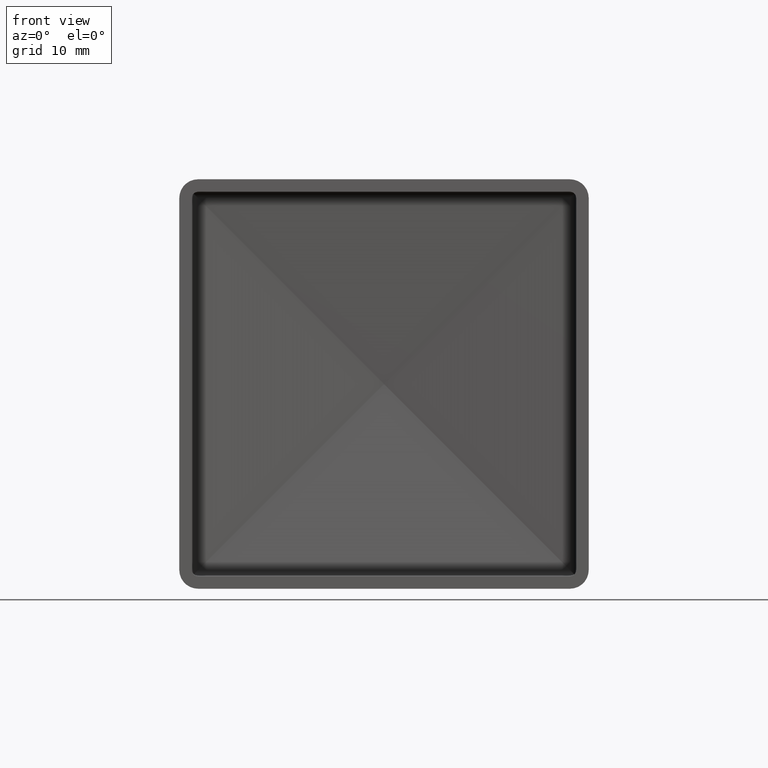
[diagram: clean part render]
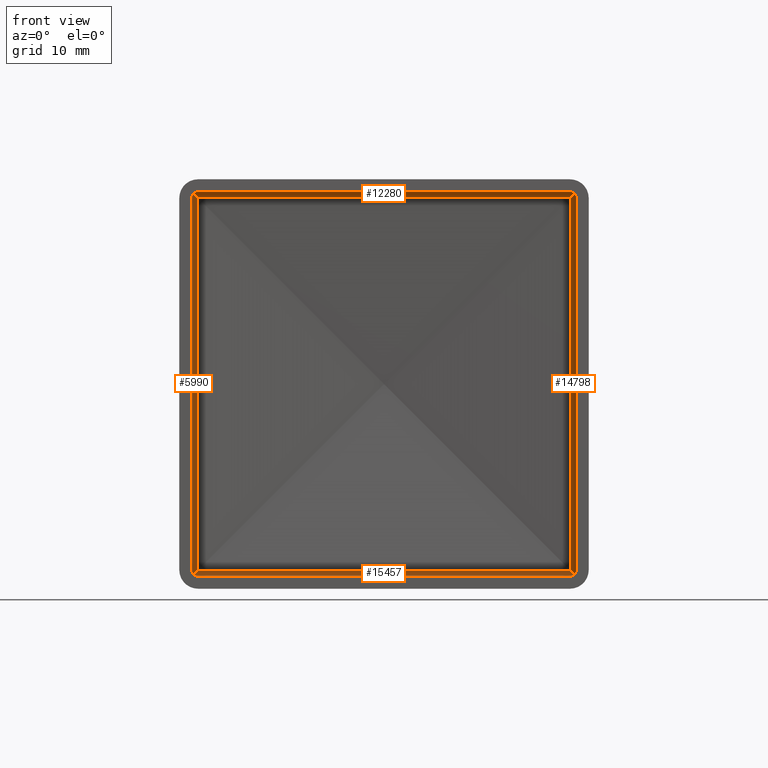
[diagram: same view with one multi-face feature highlighted, each face labeled with its STEP entity id]
A machine part, front view. The highlighted faces form ONE feature: a constant-radius fillet chain: 4 tangent blend faces with common blend radius 1 mm. The faces share edges in the B-rep.
Their STEP definitions:
[1] entity #5990 (Cylinder):
#889 = ORIENTED_EDGE ( 'NONE', *, *, #10442, .T. ) ;
#1141 = EDGE_CURVE ( 'NONE', #1759, #1361, #8740, .T. ) ;
#1280 = CARTESIAN_POINT ( 'NONE',  ( -30.07168099838301200, 7.476492595976340600, -30.07168099838300500 ) ) ;
#1361 = VERTEX_POINT ( 'NONE', #11283 ) ;
#1401 = CARTESIAN_POINT ( 'NONE',  ( -29.83373846778274100, 7.496487766615021400, 29.83373846778274800 ) ) ;
#1417 = CARTESIAN_POINT ( 'NONE',  ( -29.83373846778274800, 7.496487766615020500, -29.83373846778274800 ) ) ;
#1733 = AXIS2_PLACEMENT_3D ( 'NONE', #7866, #15743, #16085 ) ;
#1759 = VERTEX_POINT ( 'NONE', #10248 ) ;
#2811 = DIRECTION ( 'NONE',  ( 0.0000000000000000000, 0.0000000000000000000, 1.000000000000000000 ) ) ;
#3770 =( BOUNDED_CURVE ( )  B_SPLINE_CURVE ( 3, ( #1401, #16326, #4336, #14831 ),
 .UNSPECIFIED., .F., .T. ) 
 B_SPLINE_CURVE_WITH_KNOTS ( ( 4, 4 ),
 ( 4.796225622453100400, 5.497787143782207200 ),
 .UNSPECIFIED. ) 
 CURVE ( )  GEOMETRIC_REPRESENTATION_ITEM ( )  RATIONAL_B_SPLINE_CURVE ( ( 1.000000000000000000, 0.9594031369598481400, 0.9594031369598481400, 1.000000000000000000 ) ) 
 REPRESENTATION_ITEM ( '' )  );
#3840 = ORIENTED_EDGE ( 'NONE', *, *, #5920, .F. ) ;
#4047 = CARTESIAN_POINT ( 'NONE',  ( -30.75000000000000400, 6.768761102064679800, -30.01876110206467600 ) ) ;
#4124 = VERTEX_POINT ( 'NONE', #1417 ) ;
#4336 = CARTESIAN_POINT ( 'NONE',  ( -30.28826298545021000, 7.375950576922878800, 30.28826298545021700 ) ) ;
#5039 = CARTESIAN_POINT ( 'NONE',  ( -30.28826298545021700, 7.375950576922872600, -30.28826298545021000 ) ) ;
#5751 = CARTESIAN_POINT ( 'NONE',  ( -30.75000000000004300, 6.500000000000000000, 29.75000000000000000 ) ) ;
#5920 = EDGE_CURVE ( 'NONE', #9572, #15873, #10614, .T. ) ;
#5990 = ADVANCED_FACE ( 'NONE', ( #8012 ), #15777, .F. ) ;
#6707 = VECTOR ( 'NONE', #2811, 1000.000000000000000 ) ;
#6782 = CARTESIAN_POINT ( 'NONE',  ( -29.83373846778274100, 7.496487766615021400, 29.83373846778274800 ) ) ;
#6903 = LINE ( 'NONE', #8129, #6707 ) ;
#7205 = CARTESIAN_POINT ( 'NONE',  ( -30.74999999999997200, 6.500000000000000900, -29.75000000000000400 ) ) ;
#7219 = EDGE_CURVE ( 'NONE', #13163, #1361, #3770, .T. ) ;
#7246 =( BOUNDED_CURVE ( )  B_SPLINE_CURVE ( 3, ( #9064, #1280, #5039, #7926 ),
 .UNSPECIFIED., .F., .F. ) 
 B_SPLINE_CURVE_WITH_KNOTS ( ( 4, 4 ),
 ( 1.654632968863317500, 2.356194490192423900 ),
 .UNSPECIFIED. ) 
 CURVE ( )  GEOMETRIC_REPRESENTATION_ITEM ( )  RATIONAL_B_SPLINE_CURVE ( ( 1.000000000000000000, 0.9594031369598483600, 0.9594031369598483600, 1.000000000000000000 ) ) 
 REPRESENTATION_ITEM ( '' )  );
#7336 = ORIENTED_EDGE ( 'NONE', *, *, #7531, .F. ) ;
#7531 = EDGE_CURVE ( 'NONE', #15873, #1759, #13523, .T. ) ;
#7715 = EDGE_LOOP ( 'NONE', ( #7336, #3840, #16096, #889, #12953, #13606 ) ) ;
#7866 = CARTESIAN_POINT ( 'NONE',  ( -29.74999999999997200, 6.500000000000000900, -32.75000000000000000 ) ) ;
#7926 = CARTESIAN_POINT ( 'NONE',  ( -30.45710678118657500, 7.207106781186492800, -30.45710678118656700 ) ) ;
#8012 = FACE_OUTER_BOUND ( 'NONE', #7715, .T. ) ;
#8031 = CARTESIAN_POINT ( 'NONE',  ( -30.45710678118657500, 7.207106781186492800, -30.45710678118656700 ) ) ;
#8129 = CARTESIAN_POINT ( 'NONE',  ( -29.83373846778273400, 7.496487766615020500, -32.75000000000000000 ) ) ;
#8230 = DIRECTION ( 'NONE',  ( -0.0000000000000000000, -0.0000000000000000000, 1.000000000000000000 ) ) ;
#8740 =( BOUNDED_CURVE ( )  B_SPLINE_CURVE ( 3, ( #5751, #10970, #12300, #13485 ),
 .UNSPECIFIED., .F., .F. ) 
 B_SPLINE_CURVE_WITH_KNOTS ( ( 4, 4 ),
 ( 4.712388980384689700, 5.497787143782120200 ),
 .UNSPECIFIED. ) 
 CURVE ( )  GEOMETRIC_REPRESENTATION_ITEM ( )  RATIONAL_B_SPLINE_CURVE ( ( 1.000000000000000000, 0.9492530216741933400, 0.9492530216741933400, 1.000000000000000000 ) ) 
 REPRESENTATION_ITEM ( '' )  );
#9064 = CARTESIAN_POINT ( 'NONE',  ( -29.83373846778274800, 7.496487766615020500, -29.83373846778274800 ) ) ;
#9308 = CARTESIAN_POINT ( 'NONE',  ( -30.74999999999997200, 6.500000000000000900, -32.75000000000000000 ) ) ;
#9572 = VERTEX_POINT ( 'NONE', #10133 ) ;
#10049 = VECTOR ( 'NONE', #8230, 1000.000000000000000 ) ;
#10133 = CARTESIAN_POINT ( 'NONE',  ( -30.45710678118657500, 7.207106781186492800, -30.45710678118656700 ) ) ;
#10248 = CARTESIAN_POINT ( 'NONE',  ( -30.75000000000004300, 6.500000000000000000, 29.75000000000000000 ) ) ;
#10442 = EDGE_CURVE ( 'NONE', #4124, #13163, #6903, .T. ) ;
#10591 = CARTESIAN_POINT ( 'NONE',  ( -30.64714957897567200, 7.017063983397418000, -30.26706398339741700 ) ) ;
#10614 =( BOUNDED_CURVE ( )  B_SPLINE_CURVE ( 3, ( #8031, #10591, #4047, #13206 ),
 .UNSPECIFIED., .F., .F. ) 
 B_SPLINE_CURVE_WITH_KNOTS ( ( 4, 4 ),
 ( 3.926990816987269800, 4.712388980384689700 ),
 .UNSPECIFIED. ) 
 CURVE ( )  GEOMETRIC_REPRESENTATION_ITEM ( )  RATIONAL_B_SPLINE_CURVE ( ( 1.000000000000000000, 0.9492530216741947900, 0.9492530216741947900, 1.000000000000000000 ) ) 
 REPRESENTATION_ITEM ( '' )  );
#10970 = CARTESIAN_POINT ( 'NONE',  ( -30.75000000000001100, 6.768761102064685200, 30.01876110206468300 ) ) ;
#11283 = CARTESIAN_POINT ( 'NONE',  ( -30.45710678118656700, 7.207106781186499900, 30.45710678118657500 ) ) ;
#12300 = CARTESIAN_POINT ( 'NONE',  ( -30.64714957897567200, 7.017063983397425100, 30.26706398339742400 ) ) ;
#12953 = ORIENTED_EDGE ( 'NONE', *, *, #7219, .T. ) ;
#13163 = VERTEX_POINT ( 'NONE', #6782 ) ;
#13206 = CARTESIAN_POINT ( 'NONE',  ( -30.74999999999997200, 6.500000000000000900, -29.75000000000000400 ) ) ;
#13485 = CARTESIAN_POINT ( 'NONE',  ( -30.45710678118656700, 7.207106781186499900, 30.45710678118657500 ) ) ;
#13523 = LINE ( 'NONE', #9308, #10049 ) ;
#13606 = ORIENTED_EDGE ( 'NONE', *, *, #1141, .F. ) ;
#13721 = EDGE_CURVE ( 'NONE', #4124, #9572, #7246, .T. ) ;
#14831 = CARTESIAN_POINT ( 'NONE',  ( -30.45710678118656700, 7.207106781186499900, 30.45710678118657500 ) ) ;
#15743 = DIRECTION ( 'NONE',  ( -0.0000000000000000000, -0.0000000000000000000, 1.000000000000000000 ) ) ;
#15777 = CYLINDRICAL_SURFACE ( 'NONE', #1733, 1.000000000000000900 ) ;
#15873 = VERTEX_POINT ( 'NONE', #7205 ) ;
#16085 = DIRECTION ( 'NONE',  ( 1.000000000000000000, 0.0000000000000000000, 0.0000000000000000000 ) ) ;
#16096 = ORIENTED_EDGE ( 'NONE', *, *, #13721, .F. ) ;
#16326 = CARTESIAN_POINT ( 'NONE',  ( -30.07168099838300200, 7.476492595976344200, 30.07168099838300900 ) ) ;
[2] entity #15457 (Cylinder):
#300 = EDGE_CURVE ( 'NONE', #5995, #9572, #15343, .T. ) ;
#432 = AXIS2_PLACEMENT_3D ( 'NONE', #13348, #1544, #8174 ) ;
#665 = CARTESIAN_POINT ( 'NONE',  ( 30.26706398339739900, 7.017063983397442900, -30.64714957897564700 ) ) ;
#1217 = CARTESIAN_POINT ( 'NONE',  ( -29.75000000000003900, 6.500000000000000000, -30.75000000000000000 ) ) ;
#1280 = CARTESIAN_POINT ( 'NONE',  ( -30.07168099838301200, 7.476492595976340600, -30.07168099838300500 ) ) ;
#1417 = CARTESIAN_POINT ( 'NONE',  ( -29.83373846778274800, 7.496487766615020500, -29.83373846778274800 ) ) ;
#1544 = DIRECTION ( 'NONE',  ( -1.000000000000000000, -0.0000000000000000000, 2.220446049250313100E-016 ) ) ;
#2409 = EDGE_LOOP ( 'NONE', ( #10644, #3752, #6474, #12257, #8885, #16189 ) ) ;
#3146 = CARTESIAN_POINT ( 'NONE',  ( 30.45710678118652100, 7.207106781186542600, -30.45710678118652800 ) ) ;
#3342 = LINE ( 'NONE', #4608, #6424 ) ;
#3752 = ORIENTED_EDGE ( 'NONE', *, *, #11952, .T. ) ;
#4124 = VERTEX_POINT ( 'NONE', #1417 ) ;
#4346 = FACE_OUTER_BOUND ( 'NONE', #2409, .T. ) ;
#4608 = CARTESIAN_POINT ( 'NONE',  ( 32.74999999999997200, 6.500000000000000900, -30.74999999999997900 ) ) ;
#5039 = CARTESIAN_POINT ( 'NONE',  ( -30.28826298545021700, 7.375950576922872600, -30.28826298545021000 ) ) ;
#5269 = DIRECTION ( 'NONE',  ( -1.000000000000000000, -1.852836966978386300E-017, 1.557005854603688200E-018 ) ) ;
#5908 = CARTESIAN_POINT ( 'NONE',  ( 29.83373846778275900, 7.496487766615021400, -29.83373846778274100 ) ) ;
#5995 = VERTEX_POINT ( 'NONE', #15914 ) ;
#6424 = VECTOR ( 'NONE', #7250, 1000.000000000000000 ) ;
#6474 = ORIENTED_EDGE ( 'NONE', *, *, #13721, .T. ) ;
#6494 = CARTESIAN_POINT ( 'NONE',  ( 32.74999999999997900, 7.496487766615019600, -29.83373846778275900 ) ) ;
#6509 = CARTESIAN_POINT ( 'NONE',  ( -30.45710678118657500, 7.207106781186492800, -30.45710678118656700 ) ) ;
#6720 = VERTEX_POINT ( 'NONE', #14211 ) ;
#7246 =( BOUNDED_CURVE ( )  B_SPLINE_CURVE ( 3, ( #9064, #1280, #5039, #7926 ),
 .UNSPECIFIED., .F., .F. ) 
 B_SPLINE_CURVE_WITH_KNOTS ( ( 4, 4 ),
 ( 1.654632968863317500, 2.356194490192423900 ),
 .UNSPECIFIED. ) 
 CURVE ( )  GEOMETRIC_REPRESENTATION_ITEM ( )  RATIONAL_B_SPLINE_CURVE ( ( 1.000000000000000000, 0.9594031369598483600, 0.9594031369598483600, 1.000000000000000000 ) ) 
 REPRESENTATION_ITEM ( '' )  );
#7250 = DIRECTION ( 'NONE',  ( -1.000000000000000000, -0.0000000000000000000, 2.220446049250313100E-016 ) ) ;
#7357 = CARTESIAN_POINT ( 'NONE',  ( 30.01876110206465500, 6.768761102064694900, -30.74999999999999300 ) ) ;
#7926 = CARTESIAN_POINT ( 'NONE',  ( -30.45710678118657500, 7.207106781186492800, -30.45710678118656700 ) ) ;
#8174 = DIRECTION ( 'NONE',  ( 0.0000000000000000000, 0.0000000000000000000, 1.000000000000000000 ) ) ;
#8885 = ORIENTED_EDGE ( 'NONE', *, *, #14446, .F. ) ;
#9064 = CARTESIAN_POINT ( 'NONE',  ( -29.83373846778274800, 7.496487766615020500, -29.83373846778274800 ) ) ;
#9122 =( BOUNDED_CURVE ( )  B_SPLINE_CURVE ( 3, ( #3146, #665, #7357, #11291 ),
 .UNSPECIFIED., .F., .F. ) 
 B_SPLINE_CURVE_WITH_KNOTS ( ( 4, 4 ),
 ( 3.926990816987229800, 4.712388980384689700 ),
 .UNSPECIFIED. ) 
 CURVE ( )  GEOMETRIC_REPRESENTATION_ITEM ( )  RATIONAL_B_SPLINE_CURVE ( ( 1.000000000000000000, 0.9492530216741896800, 0.9492530216741896800, 1.000000000000000000 ) ) 
 REPRESENTATION_ITEM ( '' )  );
#9185 = CARTESIAN_POINT ( 'NONE',  ( 30.28826298545017100, 7.375950576922893900, -30.28826298545017800 ) ) ;
#9572 = VERTEX_POINT ( 'NONE', #10133 ) ;
#10133 = CARTESIAN_POINT ( 'NONE',  ( -30.45710678118657500, 7.207106781186492800, -30.45710678118656700 ) ) ;
#10495 = CARTESIAN_POINT ( 'NONE',  ( 30.07168099838298800, 7.476492595976345100, -30.07168099838299800 ) ) ;
#10513 = CARTESIAN_POINT ( 'NONE',  ( -30.01876110206471500, 6.768761102064673600, -30.74999999999998600 ) ) ;
#10554 = CARTESIAN_POINT ( 'NONE',  ( 30.45710678118652100, 7.207106781186542600, -30.45710678118652800 ) ) ;
#10644 = ORIENTED_EDGE ( 'NONE', *, *, #14576, .F. ) ;
#11184 = LINE ( 'NONE', #6494, #12623 ) ;
#11263 = VERTEX_POINT ( 'NONE', #5908 ) ;
#11291 = CARTESIAN_POINT ( 'NONE',  ( 29.74999999999995700, 6.500000000000000900, -30.74999999999997900 ) ) ;
#11369 = VERTEX_POINT ( 'NONE', #16735 ) ;
#11729 = CYLINDRICAL_SURFACE ( 'NONE', #432, 1.000000000000000900 ) ;
#11952 = EDGE_CURVE ( 'NONE', #11263, #4124, #11184, .T. ) ;
#12257 = ORIENTED_EDGE ( 'NONE', *, *, #300, .F. ) ;
#12623 = VECTOR ( 'NONE', #5269, 1000.000000000000000 ) ;
#13348 = CARTESIAN_POINT ( 'NONE',  ( 32.74999999999997200, 6.500000000000000900, -29.74999999999997900 ) ) ;
#13721 = EDGE_CURVE ( 'NONE', #4124, #9572, #7246, .T. ) ;
#14211 = CARTESIAN_POINT ( 'NONE',  ( 30.45710678118652100, 7.207106781186542600, -30.45710678118652800 ) ) ;
#14342 = CARTESIAN_POINT ( 'NONE',  ( -30.26706398339744600, 7.017063983397402900, -30.64714957897565700 ) ) ;
#14446 = EDGE_CURVE ( 'NONE', #11369, #5995, #3342, .T. ) ;
#14576 = EDGE_CURVE ( 'NONE', #11263, #6720, #15948, .T. ) ;
#15343 =( BOUNDED_CURVE ( )  B_SPLINE_CURVE ( 3, ( #1217, #10513, #14342, #6509 ),
 .UNSPECIFIED., .F., .F. ) 
 B_SPLINE_CURVE_WITH_KNOTS ( ( 4, 4 ),
 ( 4.712388980384688800, 5.497787143782088200 ),
 .UNSPECIFIED. ) 
 CURVE ( )  GEOMETRIC_REPRESENTATION_ITEM ( )  RATIONAL_B_SPLINE_CURVE ( ( 1.000000000000000000, 0.9492530216741973400, 0.9492530216741973400, 1.000000000000000000 ) ) 
 REPRESENTATION_ITEM ( '' )  );
#15457 = ADVANCED_FACE ( 'NONE', ( #4346 ), #11729, .F. ) ;
#15539 = CARTESIAN_POINT ( 'NONE',  ( 29.83373846778275900, 7.496487766615021400, -29.83373846778274100 ) ) ;
#15580 = EDGE_CURVE ( 'NONE', #6720, #11369, #9122, .T. ) ;
#15914 = CARTESIAN_POINT ( 'NONE',  ( -29.75000000000003900, 6.500000000000000000, -30.75000000000000000 ) ) ;
#15948 =( BOUNDED_CURVE ( )  B_SPLINE_CURVE ( 3, ( #15539, #10495, #9185, #10554 ),
 .UNSPECIFIED., .F., .F. ) 
 B_SPLINE_CURVE_WITH_KNOTS ( ( 4, 4 ),
 ( 1.654632968863313900, 2.356194490192351500 ),
 .UNSPECIFIED. ) 
 CURVE ( )  GEOMETRIC_REPRESENTATION_ITEM ( )  RATIONAL_B_SPLINE_CURVE ( ( 1.000000000000000000, 0.9594031369598561300, 0.9594031369598561300, 1.000000000000000000 ) ) 
 REPRESENTATION_ITEM ( '' )  );
#16189 = ORIENTED_EDGE ( 'NONE', *, *, #15580, .F. ) ;
#16735 = CARTESIAN_POINT ( 'NONE',  ( 29.74999999999995700, 6.500000000000000900, -30.74999999999997900 ) ) ;
[3] entity #14798 (Cylinder):
#592 =( BOUNDED_CURVE ( )  B_SPLINE_CURVE ( 3, ( #13598, #4673, #980, #2192 ),
 .UNSPECIFIED., .F., .F. ) 
 B_SPLINE_CURVE_WITH_KNOTS ( ( 4, 4 ),
 ( 4.796225622453093300, 5.497787143782164600 ),
 .UNSPECIFIED. ) 
 CURVE ( )  GEOMETRIC_REPRESENTATION_ITEM ( )  RATIONAL_B_SPLINE_CURVE ( ( 1.000000000000000000, 0.9594031369598523500, 0.9594031369598523500, 1.000000000000000000 ) ) 
 REPRESENTATION_ITEM ( '' )  );
#700 = ORIENTED_EDGE ( 'NONE', *, *, #14990, .F. ) ;
#745 = CARTESIAN_POINT ( 'NONE',  ( 30.74999999999996800, 6.768761102064685200, -30.01876110206468700 ) ) ;
#767 = LINE ( 'NONE', #1844, #11676 ) ;
#980 = CARTESIAN_POINT ( 'NONE',  ( 30.28826298545018100, 7.375950576922891200, 30.28826298545017800 ) ) ;
#1644 = CARTESIAN_POINT ( 'NONE',  ( 29.83373846778272700, 7.496487766615021400, 29.83373846778273400 ) ) ;
#1844 = CARTESIAN_POINT ( 'NONE',  ( 30.74999999999995700, 6.500000000000000000, -32.75000000000000000 ) ) ;
#2132 = ORIENTED_EDGE ( 'NONE', *, *, #14576, .T. ) ;
#2192 = CARTESIAN_POINT ( 'NONE',  ( 30.45710678118653500, 7.207106781186529300, 30.45710678118652800 ) ) ;
#2198 = CARTESIAN_POINT ( 'NONE',  ( 30.45710678118652100, 7.207106781186542600, -30.45710678118652800 ) ) ;
#2780 = CARTESIAN_POINT ( 'NONE',  ( 30.74999999999997200, 6.500000000000000900, 29.75000000000000000 ) ) ;
#4233 = VERTEX_POINT ( 'NONE', #2780 ) ;
#4241 = DIRECTION ( 'NONE',  ( 2.118746230200680300E-016, 0.0000000000000000000, 1.000000000000000000 ) ) ;
#4673 = CARTESIAN_POINT ( 'NONE',  ( 30.07168099838298800, 7.476492595976348600, 30.07168099838298000 ) ) ;
#4799 = ORIENTED_EDGE ( 'NONE', *, *, #6787, .T. ) ;
#4979 = VECTOR ( 'NONE', #14258, 1000.000000000000000 ) ;
#4984 = CARTESIAN_POINT ( 'NONE',  ( 30.45710678118653500, 7.207106781186529300, 30.45710678118652800 ) ) ;
#5839 = CARTESIAN_POINT ( 'NONE',  ( 29.74999999999997200, 6.500000000000000900, -32.75000000000000000 ) ) ;
#5908 = CARTESIAN_POINT ( 'NONE',  ( 29.83373846778275900, 7.496487766615021400, -29.83373846778274100 ) ) ;
#6251 = EDGE_CURVE ( 'NONE', #6547, #6720, #13428, .T. ) ;
#6547 = VERTEX_POINT ( 'NONE', #15150 ) ;
#6720 = VERTEX_POINT ( 'NONE', #14211 ) ;
#6787 = EDGE_CURVE ( 'NONE', #6547, #4233, #767, .T. ) ;
#7010 = EDGE_CURVE ( 'NONE', #15887, #4233, #11130, .T. ) ;
#7512 = EDGE_LOOP ( 'NONE', ( #4799, #10076, #12416, #700, #2132, #14490 ) ) ;
#7583 = CARTESIAN_POINT ( 'NONE',  ( 30.74999999999997200, 6.500000000000000900, 29.75000000000000000 ) ) ;
#7863 = LINE ( 'NONE', #12901, #4979 ) ;
#7879 = FACE_OUTER_BOUND ( 'NONE', #7512, .T. ) ;
#8477 = EDGE_CURVE ( 'NONE', #10055, #15887, #592, .T. ) ;
#8700 = CARTESIAN_POINT ( 'NONE',  ( 30.64714957897562500, 7.017063983397425100, -30.26706398339742800 ) ) ;
#9185 = CARTESIAN_POINT ( 'NONE',  ( 30.28826298545017100, 7.375950576922893900, -30.28826298545017800 ) ) ;
#10055 = VERTEX_POINT ( 'NONE', #1644 ) ;
#10076 = ORIENTED_EDGE ( 'NONE', *, *, #7010, .F. ) ;
#10087 = DIRECTION ( 'NONE',  ( 1.000000000000000000, 0.0000000000000000000, 0.0000000000000000000 ) ) ;
#10143 = DIRECTION ( 'NONE',  ( -0.0000000000000000000, -0.0000000000000000000, 1.000000000000000000 ) ) ;
#10495 = CARTESIAN_POINT ( 'NONE',  ( 30.07168099838298800, 7.476492595976345100, -30.07168099838299800 ) ) ;
#10554 = CARTESIAN_POINT ( 'NONE',  ( 30.45710678118652100, 7.207106781186542600, -30.45710678118652800 ) ) ;
#11130 =( BOUNDED_CURVE ( )  B_SPLINE_CURVE ( 3, ( #4984, #14140, #16786, #7583 ),
 .UNSPECIFIED., .F., .F. ) 
 B_SPLINE_CURVE_WITH_KNOTS ( ( 4, 4 ),
 ( 3.926990816987266300, 4.712388980384689700 ),
 .UNSPECIFIED. ) 
 CURVE ( )  GEOMETRIC_REPRESENTATION_ITEM ( )  RATIONAL_B_SPLINE_CURVE ( ( 1.000000000000000000, 0.9492530216741942300, 0.9492530216741942300, 1.000000000000000000 ) ) 
 REPRESENTATION_ITEM ( '' )  );
#11263 = VERTEX_POINT ( 'NONE', #5908 ) ;
#11676 = VECTOR ( 'NONE', #4241, 1000.000000000000000 ) ;
#12209 = AXIS2_PLACEMENT_3D ( 'NONE', #5839, #10143, #10087 ) ;
#12416 = ORIENTED_EDGE ( 'NONE', *, *, #8477, .F. ) ;
#12901 = CARTESIAN_POINT ( 'NONE',  ( 29.83373846778274400, 7.496487766615022300, -32.75000000000000000 ) ) ;
#13428 =( BOUNDED_CURVE ( )  B_SPLINE_CURVE ( 3, ( #16541, #745, #8700, #2198 ),
 .UNSPECIFIED., .F., .F. ) 
 B_SPLINE_CURVE_WITH_KNOTS ( ( 4, 4 ),
 ( 1.570796326794896600, 2.356194490192327500 ),
 .UNSPECIFIED. ) 
 CURVE ( )  GEOMETRIC_REPRESENTATION_ITEM ( )  RATIONAL_B_SPLINE_CURVE ( ( 1.000000000000000000, 0.9492530216741933400, 0.9492530216741933400, 1.000000000000000000 ) ) 
 REPRESENTATION_ITEM ( '' )  );
#13598 = CARTESIAN_POINT ( 'NONE',  ( 29.83373846778272700, 7.496487766615021400, 29.83373846778273400 ) ) ;
#13879 = CARTESIAN_POINT ( 'NONE',  ( 30.45710678118653500, 7.207106781186529300, 30.45710678118652800 ) ) ;
#13986 = CYLINDRICAL_SURFACE ( 'NONE', #12209, 1.000000000000000900 ) ;
#14140 = CARTESIAN_POINT ( 'NONE',  ( 30.64714957897563300, 7.017063983397420700, 30.26706398339741700 ) ) ;
#14211 = CARTESIAN_POINT ( 'NONE',  ( 30.45710678118652100, 7.207106781186542600, -30.45710678118652800 ) ) ;
#14258 = DIRECTION ( 'NONE',  ( -0.0000000000000000000, -0.0000000000000000000, 1.000000000000000000 ) ) ;
#14490 = ORIENTED_EDGE ( 'NONE', *, *, #6251, .F. ) ;
#14576 = EDGE_CURVE ( 'NONE', #11263, #6720, #15948, .T. ) ;
#14798 = ADVANCED_FACE ( 'NONE', ( #7879 ), #13986, .F. ) ;
#14990 = EDGE_CURVE ( 'NONE', #11263, #10055, #7863, .T. ) ;
#15150 = CARTESIAN_POINT ( 'NONE',  ( 30.74999999999995700, 6.500000000000000000, -29.75000000000000400 ) ) ;
#15539 = CARTESIAN_POINT ( 'NONE',  ( 29.83373846778275900, 7.496487766615021400, -29.83373846778274100 ) ) ;
#15887 = VERTEX_POINT ( 'NONE', #13879 ) ;
#15948 =( BOUNDED_CURVE ( )  B_SPLINE_CURVE ( 3, ( #15539, #10495, #9185, #10554 ),
 .UNSPECIFIED., .F., .F. ) 
 B_SPLINE_CURVE_WITH_KNOTS ( ( 4, 4 ),
 ( 1.654632968863313900, 2.356194490192351500 ),
 .UNSPECIFIED. ) 
 CURVE ( )  GEOMETRIC_REPRESENTATION_ITEM ( )  RATIONAL_B_SPLINE_CURVE ( ( 1.000000000000000000, 0.9594031369598561300, 0.9594031369598561300, 1.000000000000000000 ) ) 
 REPRESENTATION_ITEM ( '' )  );
#16541 = CARTESIAN_POINT ( 'NONE',  ( 30.74999999999995700, 6.500000000000000000, -29.75000000000000400 ) ) ;
#16786 = CARTESIAN_POINT ( 'NONE',  ( 30.74999999999996800, 6.768761102064682500, 30.01876110206467600 ) ) ;
[4] entity #12280 (Cylinder):
#462 = CARTESIAN_POINT ( 'NONE',  ( 30.45710678118653500, 7.207106781186529300, 30.45710678118652800 ) ) ;
#544 = EDGE_CURVE ( 'NONE', #1361, #7164, #11566, .T. ) ;
#581 = CARTESIAN_POINT ( 'NONE',  ( 30.26706398339740300, 7.017063983397433100, 30.64714957897563600 ) ) ;
#592 =( BOUNDED_CURVE ( )  B_SPLINE_CURVE ( 3, ( #13598, #4673, #980, #2192 ),
 .UNSPECIFIED., .F., .F. ) 
 B_SPLINE_CURVE_WITH_KNOTS ( ( 4, 4 ),
 ( 4.796225622453093300, 5.497787143782164600 ),
 .UNSPECIFIED. ) 
 CURVE ( )  GEOMETRIC_REPRESENTATION_ITEM ( )  RATIONAL_B_SPLINE_CURVE ( ( 1.000000000000000000, 0.9594031369598523500, 0.9594031369598523500, 1.000000000000000000 ) ) 
 REPRESENTATION_ITEM ( '' )  );
#922 = ORIENTED_EDGE ( 'NONE', *, *, #8477, .T. ) ;
#980 = CARTESIAN_POINT ( 'NONE',  ( 30.28826298545018100, 7.375950576922891200, 30.28826298545017800 ) ) ;
#1361 = VERTEX_POINT ( 'NONE', #11283 ) ;
#1401 = CARTESIAN_POINT ( 'NONE',  ( -29.83373846778274100, 7.496487766615021400, 29.83373846778274800 ) ) ;
#1404 = CARTESIAN_POINT ( 'NONE',  ( -32.75000000000004300, 6.500000000000000000, 30.75000000000000000 ) ) ;
#1644 = CARTESIAN_POINT ( 'NONE',  ( 29.83373846778272700, 7.496487766615021400, 29.83373846778273400 ) ) ;
#2192 = CARTESIAN_POINT ( 'NONE',  ( 30.45710678118653500, 7.207106781186529300, 30.45710678118652800 ) ) ;
#2764 = DIRECTION ( 'NONE',  ( -1.000000000000000000, 0.0000000000000000000, -0.0000000000000000000 ) ) ;
#3094 = CARTESIAN_POINT ( 'NONE',  ( -30.01876110206471200, 6.768761102064674500, 30.74999999999999600 ) ) ;
#3770 =( BOUNDED_CURVE ( )  B_SPLINE_CURVE ( 3, ( #1401, #16326, #4336, #14831 ),
 .UNSPECIFIED., .F., .T. ) 
 B_SPLINE_CURVE_WITH_KNOTS ( ( 4, 4 ),
 ( 4.796225622453100400, 5.497787143782207200 ),
 .UNSPECIFIED. ) 
 CURVE ( )  GEOMETRIC_REPRESENTATION_ITEM ( )  RATIONAL_B_SPLINE_CURVE ( ( 1.000000000000000000, 0.9594031369598481400, 0.9594031369598481400, 1.000000000000000000 ) ) 
 REPRESENTATION_ITEM ( '' )  );
#4164 = CARTESIAN_POINT ( 'NONE',  ( -29.75000000000003900, 6.500000000000000900, 30.74999999999997900 ) ) ;
#4183 = CARTESIAN_POINT ( 'NONE',  ( 32.74999999999998600, 7.496487766615022300, 29.83373846778273700 ) ) ;
#4328 = CARTESIAN_POINT ( 'NONE',  ( 29.74999999999997200, 6.500000000000000000, 30.75000000000000000 ) ) ;
#4336 = CARTESIAN_POINT ( 'NONE',  ( -30.28826298545021000, 7.375950576922878800, 30.28826298545021700 ) ) ;
#4584 = VECTOR ( 'NONE', #2764, 1000.000000000000000 ) ;
#4673 = CARTESIAN_POINT ( 'NONE',  ( 30.07168099838298800, 7.476492595976348600, 30.07168099838298000 ) ) ;
#4834 = VERTEX_POINT ( 'NONE', #9224 ) ;
#4928 = DIRECTION ( 'NONE',  ( -1.000000000000000000, -0.0000000000000000000, 2.220446049250313100E-016 ) ) ;
#5427 = FACE_OUTER_BOUND ( 'NONE', #12827, .T. ) ;
#5873 =( BOUNDED_CURVE ( )  B_SPLINE_CURVE ( 3, ( #4328, #9735, #581, #462 ),
 .UNSPECIFIED., .F., .F. ) 
 B_SPLINE_CURVE_WITH_KNOTS ( ( 4, 4 ),
 ( 1.570796326794895700, 2.356194490192342200 ),
 .UNSPECIFIED. ) 
 CURVE ( )  GEOMETRIC_REPRESENTATION_ITEM ( )  RATIONAL_B_SPLINE_CURVE ( ( 1.000000000000000000, 0.9492530216741912300, 0.9492530216741912300, 1.000000000000000000 ) ) 
 REPRESENTATION_ITEM ( '' )  );
#6298 = DIRECTION ( 'NONE',  ( 0.0000000000000000000, 0.0000000000000000000, 1.000000000000000000 ) ) ;
#6746 = EDGE_CURVE ( 'NONE', #10055, #13163, #16190, .T. ) ;
#6782 = CARTESIAN_POINT ( 'NONE',  ( -29.83373846778274100, 7.496487766615021400, 29.83373846778274800 ) ) ;
#7078 = CARTESIAN_POINT ( 'NONE',  ( -30.45710678118656700, 7.207106781186499900, 30.45710678118657500 ) ) ;
#7164 = VERTEX_POINT ( 'NONE', #4164 ) ;
#7219 = EDGE_CURVE ( 'NONE', #13163, #1361, #3770, .T. ) ;
#7475 = ORIENTED_EDGE ( 'NONE', *, *, #544, .F. ) ;
#7645 = CARTESIAN_POINT ( 'NONE',  ( 32.74999999999998600, 6.500000000000000900, 29.74999999999996400 ) ) ;
#8339 = EDGE_CURVE ( 'NONE', #4834, #15887, #5873, .T. ) ;
#8477 = EDGE_CURVE ( 'NONE', #10055, #15887, #592, .T. ) ;
#8755 = ORIENTED_EDGE ( 'NONE', *, *, #6746, .F. ) ;
#9123 = CYLINDRICAL_SURFACE ( 'NONE', #10007, 1.000000000000000900 ) ;
#9224 = CARTESIAN_POINT ( 'NONE',  ( 29.74999999999997200, 6.500000000000000000, 30.75000000000000000 ) ) ;
#9523 = LINE ( 'NONE', #1404, #4584 ) ;
#9735 = CARTESIAN_POINT ( 'NONE',  ( 30.01876110206466200, 6.768761102064689600, 30.74999999999998200 ) ) ;
#10007 = AXIS2_PLACEMENT_3D ( 'NONE', #7645, #4928, #6298 ) ;
#10055 = VERTEX_POINT ( 'NONE', #1644 ) ;
#10801 = CARTESIAN_POINT ( 'NONE',  ( -30.26706398339744200, 7.017063983397404700, 30.64714957897566100 ) ) ;
#10966 = CARTESIAN_POINT ( 'NONE',  ( -29.75000000000003900, 6.500000000000000900, 30.74999999999997900 ) ) ;
#11283 = CARTESIAN_POINT ( 'NONE',  ( -30.45710678118656700, 7.207106781186499900, 30.45710678118657500 ) ) ;
#11566 =( BOUNDED_CURVE ( )  B_SPLINE_CURVE ( 3, ( #7078, #10801, #3094, #10966 ),
 .UNSPECIFIED., .F., .F. ) 
 B_SPLINE_CURVE_WITH_KNOTS ( ( 4, 4 ),
 ( 3.926990816987290700, 4.712388980384689700 ),
 .UNSPECIFIED. ) 
 CURVE ( )  GEOMETRIC_REPRESENTATION_ITEM ( )  RATIONAL_B_SPLINE_CURVE ( ( 1.000000000000000000, 0.9492530216741974500, 0.9492530216741974500, 1.000000000000000000 ) ) 
 REPRESENTATION_ITEM ( '' )  );
#11588 = DIRECTION ( 'NONE',  ( -1.000000000000000000, -0.0000000000000000000, 2.220446049250313100E-016 ) ) ;
#12208 = ORIENTED_EDGE ( 'NONE', *, *, #8339, .F. ) ;
#12280 = ADVANCED_FACE ( 'NONE', ( #5427 ), #9123, .F. ) ;
#12827 = EDGE_LOOP ( 'NONE', ( #14315, #8755, #922, #12208, #13650, #7475 ) ) ;
#13163 = VERTEX_POINT ( 'NONE', #6782 ) ;
#13598 = CARTESIAN_POINT ( 'NONE',  ( 29.83373846778272700, 7.496487766615021400, 29.83373846778273400 ) ) ;
#13650 = ORIENTED_EDGE ( 'NONE', *, *, #13810, .T. ) ;
#13810 = EDGE_CURVE ( 'NONE', #4834, #7164, #9523, .T. ) ;
#13879 = CARTESIAN_POINT ( 'NONE',  ( 30.45710678118653500, 7.207106781186529300, 30.45710678118652800 ) ) ;
#14315 = ORIENTED_EDGE ( 'NONE', *, *, #7219, .F. ) ;
#14831 = CARTESIAN_POINT ( 'NONE',  ( -30.45710678118656700, 7.207106781186499900, 30.45710678118657500 ) ) ;
#15761 = VECTOR ( 'NONE', #11588, 1000.000000000000000 ) ;
#15887 = VERTEX_POINT ( 'NONE', #13879 ) ;
#16190 = LINE ( 'NONE', #4183, #15761 ) ;
#16326 = CARTESIAN_POINT ( 'NONE',  ( -30.07168099838300200, 7.476492595976344200, 30.07168099838300900 ) ) ;